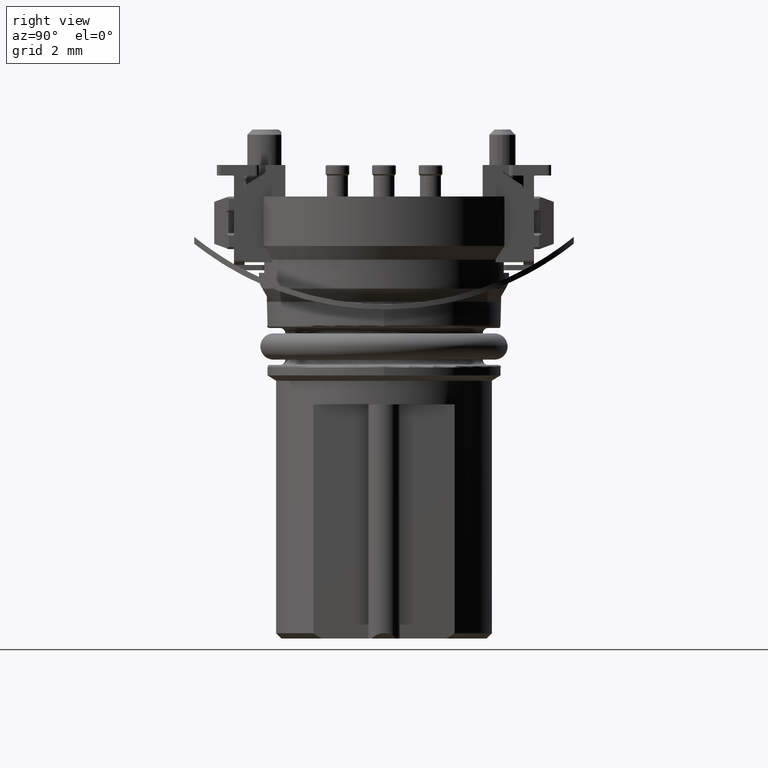
[diagram: clean part render]
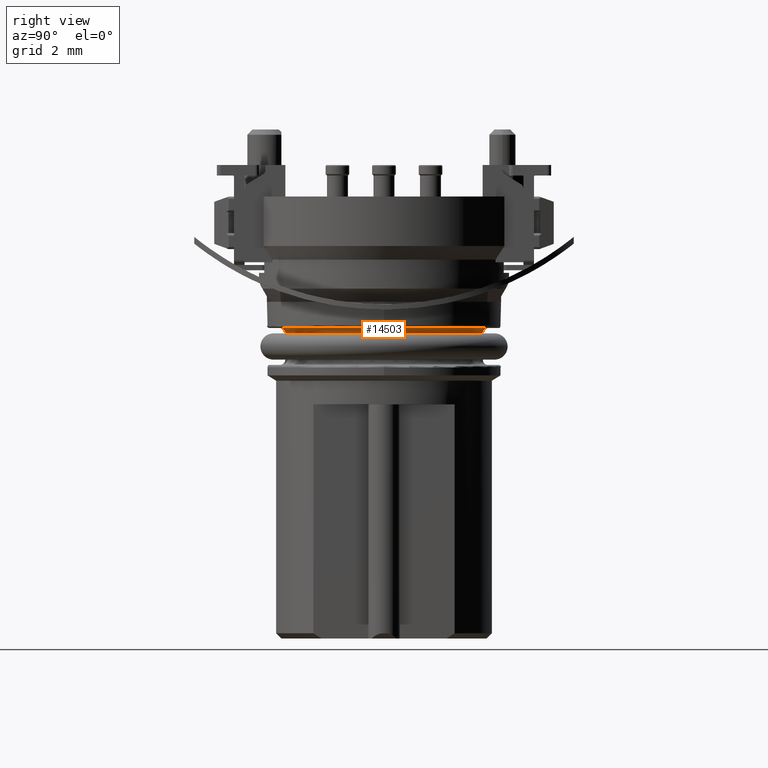
[diagram: same view with one face highlighted and labeled with its STEP entity id]
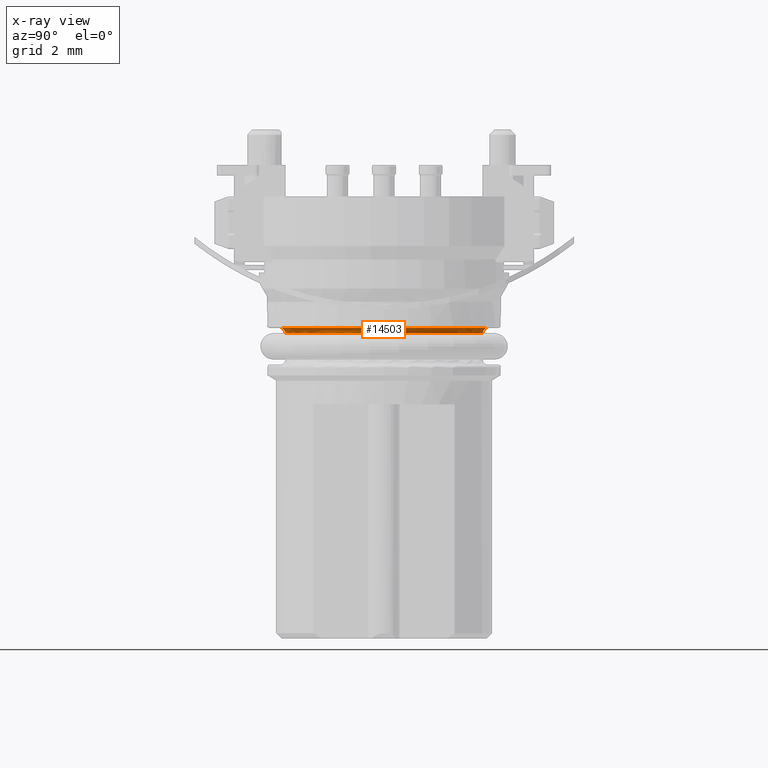
[diagram: x-ray of the same camera — body ghosted, the highlighted face saturated]
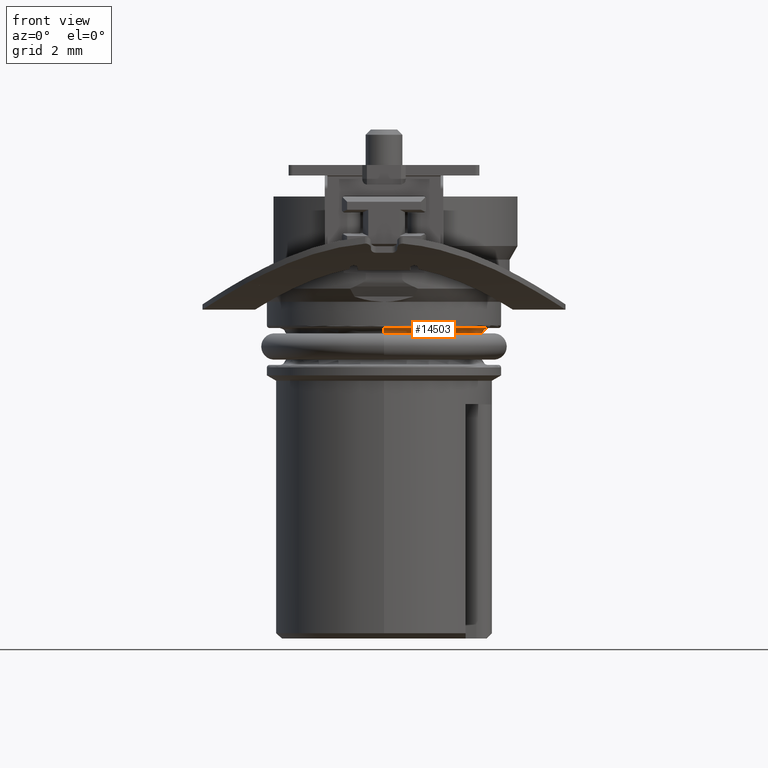
[diagram: same view with one face highlighted and labeled with its STEP entity id]
A machine part, right view. The second image highlights one B-rep face of the part: STEP entity #14503.
The next image is the same camera in x-ray: the body ghosted, the highlighted face saturated — about 0% of this face is hidden behind the body in this view.
A second angle (front view) of the same face is appended — the face is thin or edge-on in the first view.
In plain terms, the highlighted toroidal blend (fillet) surface has major radius 3.95 mm and minor (blend) radius 0.2 mm.
Its self-contained STEP definition (entity closure, byte-faithful):
#3156=CARTESIAN_POINT('',(0.E0,0.E0,-6.197927405784E0));
#3157=DIRECTION('',(0.E0,0.E0,1.E0));
#3158=DIRECTION('',(0.E0,-1.E0,0.E0));
#3159=AXIS2_PLACEMENT_3D('',#3156,#3157,#3158);
#3161=CARTESIAN_POINT('',(0.E0,-3.95E0,-6.397927405784E0));
#3162=DIRECTION('',(1.E0,0.E0,0.E0));
#3163=DIRECTION('',(0.E0,1.E0,0.E0));
#3164=AXIS2_PLACEMENT_3D('',#3161,#3162,#3163);
#3171=CARTESIAN_POINT('',(0.E0,3.95E0,-6.397927405784E0));
#3172=DIRECTION('',(-1.E0,0.E0,0.E0));
#3173=DIRECTION('',(0.E0,-1.E0,0.E0));
#3174=AXIS2_PLACEMENT_3D('',#3171,#3172,#3173);
#3176=CARTESIAN_POINT('',(0.E0,0.E0,-6.397927405784E0));
#3177=DIRECTION('',(0.E0,0.E0,1.E0));
#3178=DIRECTION('',(0.E0,-1.E0,0.E0));
#3179=AXIS2_PLACEMENT_3D('',#3176,#3177,#3178);
#9046=CARTESIAN_POINT('',(0.E0,-3.75E0,-6.397927405784E0));
#9047=CARTESIAN_POINT('',(0.E0,-3.95E0,-6.197927405784E0));
#9048=VERTEX_POINT('',#9046);
#9049=VERTEX_POINT('',#9047);
#9054=CARTESIAN_POINT('',(0.E0,3.75E0,-6.397927405784E0));
#9055=CARTESIAN_POINT('',(0.E0,3.95E0,-6.197927405784E0));
#9056=VERTEX_POINT('',#9054);
#9057=VERTEX_POINT('',#9055);
#14491=CARTESIAN_POINT('',(0.E0,0.E0,-6.397927405784E0));
#14492=DIRECTION('',(0.E0,0.E0,1.E0));
#14493=DIRECTION('',(0.E0,1.E0,0.E0));
#14494=AXIS2_PLACEMENT_3D('',#14491,#14492,#14493);
#14495=TOROIDAL_SURFACE('',#14494,3.95E0,2.E-1);
#14496=ORIENTED_EDGE('',*,*,#14481,.T.);
#14497=ORIENTED_EDGE('',*,*,#14471,.T.);
#14498=ORIENTED_EDGE('',*,*,#14485,.F.);
#14500=ORIENTED_EDGE('',*,*,#14499,.F.);
#14501=EDGE_LOOP('',(#14496,#14497,#14498,#14500));
#14502=FACE_OUTER_BOUND('',#14501,.F.);
#3160=CIRCLE('',#3159,3.95E0);
#3165=CIRCLE('',#3164,2.E-1);
#3175=CIRCLE('',#3174,2.E-1);
#3180=CIRCLE('',#3179,3.75E0);
#14471=EDGE_CURVE('',#9049,#9057,#3160,.T.);
#14481=EDGE_CURVE('',#9048,#9049,#3165,.T.);
#14485=EDGE_CURVE('',#9056,#9057,#3175,.T.);
#14499=EDGE_CURVE('',#9048,#9056,#3180,.T.);
#14503=ADVANCED_FACE('',(#14502),#14495,.F.);